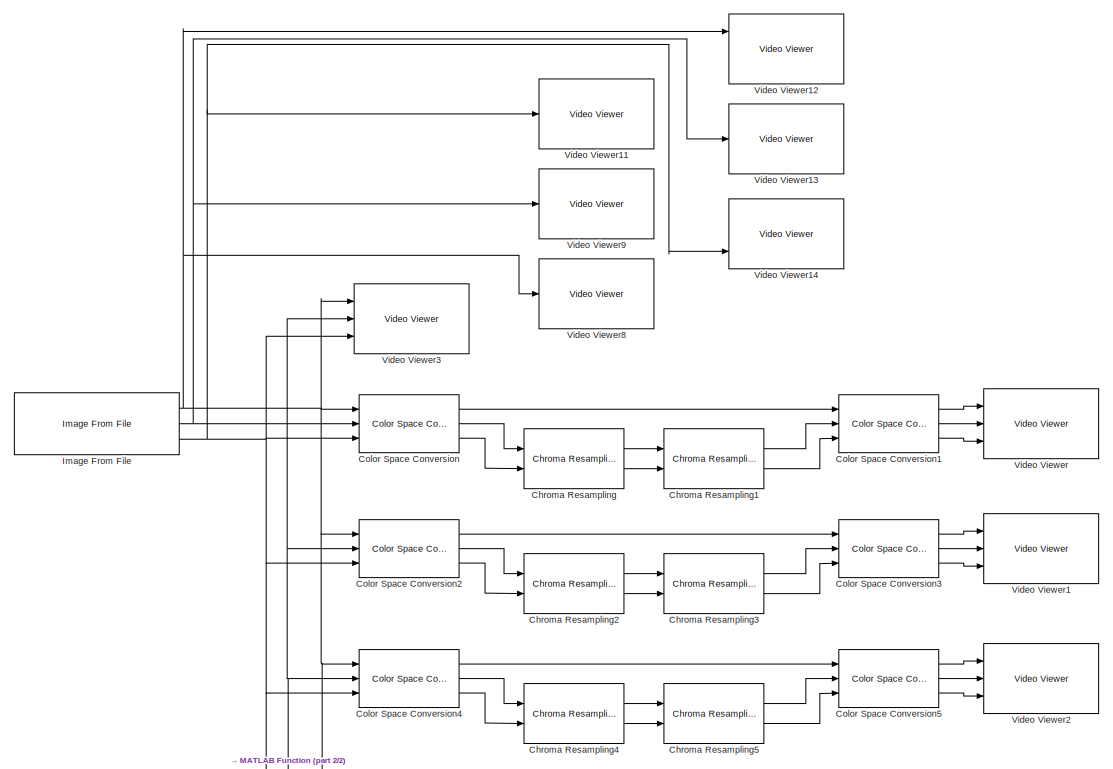
[diagram: root canvas - part 1/2, full width, top band]
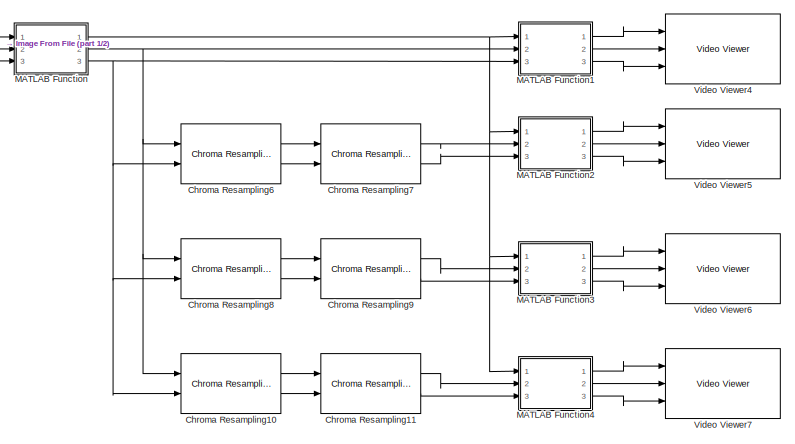
[diagram: root canvas - part 2/2, bottom center region]
MODEL slx_1290acf351bf
KIND model
BLOCK [Reference] Chroma Resampling  REF=visionconversions/Chroma
Resampling
  Ports = [2, 2]
  SourceBlock = visionconversions/Chroma\nResampling
  SourceType = Chroma Resampling
  antialiasing = Default
  hcoeff = [0.2 0.6 0.2]
  interpolation = pixel replication
  isInputTransposed = off
  resampling = 4:4:4 to 4:2:2
  vcoeff = [0.5 0.5]
BLOCK [Reference] Chroma Resampling1  REF=visionconversions/Chroma
Resampling
  Ports = [2, 2]
  SourceBlock = visionconversions/Chroma\nResampling
  SourceType = Chroma Resampling
  antialiasing = Default
  hcoeff = [0.2 0.6 0.2]
  interpolation = linear
  isInputTransposed = off
  resampling = 4:2:2 to 4:4:4
  vcoeff = [0.5 0.5]
BLOCK [Reference] Chroma Resampling10  REF=visionconversions/Chroma
Resampling
  Ports = [2, 2]
  SourceBlock = visionconversions/Chroma\nResampling
  SourceType = Chroma Resampling
  antialiasing = Default
  hcoeff = [0.2 0.6 0.2]
  interpolation = pixel replication
  isInputTransposed = off
  resampling = 4:4:4 to 4:2:0 (MPEG1)
  vcoeff = [0.5 0.5]
BLOCK [Reference] Chroma Resampling11  REF=visionconversions/Chroma
Resampling
  Ports = [2, 2]
  SourceBlock = visionconversions/Chroma\nResampling
  SourceType = Chroma Resampling
  antialiasing = Default
  hcoeff = [0.2 0.6 0.2]
  interpolation = linear
  isInputTransposed = off
  resampling = 4:2:0 (MPEG1) to 4:4:4
  vcoeff = [0.5 0.5]
BLOCK [Reference] Chroma Resampling2  REF=visionconversions/Chroma
Resampling
  Ports = [2, 2]
  SourceBlock = visionconversions/Chroma\nResampling
  SourceType = Chroma Resampling
  antialiasing = Default
  hcoeff = [0.2 0.6 0.2]
  interpolation = pixel replication
  isInputTransposed = off
  resampling = 4:4:4 to 4:1:1
  vcoeff = [0.5 0.5]
BLOCK [Reference] Chroma Resampling3  REF=visionconversions/Chroma
Resampling
  Ports = [2, 2]
  SourceBlock = visionconversions/Chroma\nResampling
  SourceType = Chroma Resampling
  antialiasing = Default
  hcoeff = [0.2 0.6 0.2]
  interpolation = linear
  isInputTransposed = off
  resampling = 4:1:1 to 4:4:4
  vcoeff = [0.5 0.5]
BLOCK [Reference] Chroma Resampling4  REF=visionconversions/Chroma
Resampling
  Ports = [2, 2]
  SourceBlock = visionconversions/Chroma\nResampling
  SourceType = Chroma Resampling
  antialiasing = Default
  hcoeff = [0.2 0.6 0.2]
  interpolation = pixel replication
  isInputTransposed = off
  resampling = 4:4:4 to 4:2:0 (MPEG1)
  vcoeff = [0.5 0.5]
BLOCK [Reference] Chroma Resampling5  REF=visionconversions/Chroma
Resampling
  Ports = [2, 2]
  SourceBlock = visionconversions/Chroma\nResampling
  SourceType = Chroma Resampling
  antialiasing = Default
  hcoeff = [0.2 0.6 0.2]
  interpolation = linear
  isInputTransposed = off
  resampling = 4:2:0 (MPEG1) to 4:4:4
  vcoeff = [0.5 0.5]
BLOCK [Reference] Chroma Resampling6  REF=visionconversions/Chroma
Resampling
  Ports = [2, 2]
  SourceBlock = visionconversions/Chroma\nResampling
  SourceType = Chroma Resampling
  antialiasing = Default
  hcoeff = [0.2 0.6 0.2]
  interpolation = pixel replication
  isInputTransposed = off
  resampling = 4:4:4 to 4:2:2
  vcoeff = [0.5 0.5]
BLOCK [Reference] Chroma Resampling7  REF=visionconversions/Chroma
Resampling
  Ports = [2, 2]
  SourceBlock = visionconversions/Chroma\nResampling
  SourceType = Chroma Resampling
  antialiasing = Default
  hcoeff = [0.2 0.6 0.2]
  interpolation = linear
  isInputTransposed = off
  resampling = 4:2:2 to 4:4:4
  vcoeff = [0.5 0.5]
BLOCK [Reference] Chroma Resampling8  REF=visionconversions/Chroma
Resampling
  Ports = [2, 2]
  SourceBlock = visionconversions/Chroma\nResampling
  SourceType = Chroma Resampling
  antialiasing = Default
  hcoeff = [0.2 0.6 0.2]
  interpolation = pixel replication
  isInputTransposed = off
  resampling = 4:4:4 to 4:1:1
  vcoeff = [0.5 0.5]
BLOCK [Reference] Chroma Resampling9  REF=visionconversions/Chroma
Resampling
  Ports = [2, 2]
  SourceBlock = visionconversions/Chroma\nResampling
  SourceType = Chroma Resampling
  antialiasing = Default
  hcoeff = [0.2 0.6 0.2]
  interpolation = linear
  isInputTransposed = off
  resampling = 4:1:1 to 4:4:4
  vcoeff = [0.5 0.5]
BLOCK [Reference] Color Space Conversion  REF=visionconversions/Color Space
 Conversion
  Ports = [3, 3]
  SourceBlock = visionconversions/Color Space\n Conversion
  SourceType = Color Space Conversion
  conversion = Obsolete
  conversionActive = R'G'B' to Y'CbCr
  imagePorts = Separate color signals
  rec = Rec. 601 (SDTV)
  sys = 1125/60/2:1
  wp_str = D65
BLOCK [Reference] Color Space Conversion1  REF=visionconversions/Color Space
 Conversion
  Ports = [3, 3]
  SourceBlock = visionconversions/Color Space\n Conversion
  SourceType = Color Space Conversion
  conversion = Obsolete
  conversionActive = Y'CbCr to R'G'B'
  imagePorts = Separate color signals
  rec = Rec. 601 (SDTV)
  sys = 1125/60/2:1
  wp_str = D65
BLOCK [Reference] Color Space Conversion2  REF=visionconversions/Color Space
 Conversion
  Ports = [3, 3]
  SourceBlock = visionconversions/Color Space\n Conversion
  SourceType = Color Space Conversion
  conversion = Obsolete
  conversionActive = R'G'B' to Y'CbCr
  imagePorts = Separate color signals
  rec = Rec. 601 (SDTV)
  sys = 1125/60/2:1
  wp_str = D65
BLOCK [Reference] Color Space Conversion3  REF=visionconversions/Color Space
 Conversion
  Ports = [3, 3]
  SourceBlock = visionconversions/Color Space\n Conversion
  SourceType = Color Space Conversion
  conversion = Obsolete
  conversionActive = Y'CbCr to R'G'B'
  imagePorts = Separate color signals
  rec = Rec. 601 (SDTV)
  sys = 1125/60/2:1
  wp_str = D65
BLOCK [Reference] Color Space Conversion4  REF=visionconversions/Color Space
 Conversion
  Ports = [3, 3]
  SourceBlock = visionconversions/Color Space\n Conversion
  SourceType = Color Space Conversion
  conversion = Obsolete
  conversionActive = R'G'B' to Y'CbCr
  imagePorts = Separate color signals
  rec = Rec. 601 (SDTV)
  sys = 1125/60/2:1
  wp_str = D65
BLOCK [Reference] Color Space Conversion5  REF=visionconversions/Color Space
 Conversion
  Ports = [3, 3]
  SourceBlock = visionconversions/Color Space\n Conversion
  SourceType = Color Space Conversion
  conversion = Obsolete
  conversionActive = Y'CbCr to R'G'B'
  imagePorts = Separate color signals
  rec = Rec. 601 (SDTV)
  sys = 1125/60/2:1
  wp_str = D65
BLOCK [Reference] Image From File  REF=visionsources/Image From File
  FileName = <userpath>\Desktop\parrots.jpg
  FractionLength = 15
  FractionLengthMode = User-defined
  ImageDataType = double
  OutPortLabels = R|G|B
  Ports = [0, 3]
  Signed = on
  SourceBlock = visionsources/Image From File
  SourceType = Image From File
  Tag = vipblks_nd
  Ts = inf
  WordLength = 16
  imagePorts = Separate color signals
  sdImageDataType = uint(8)
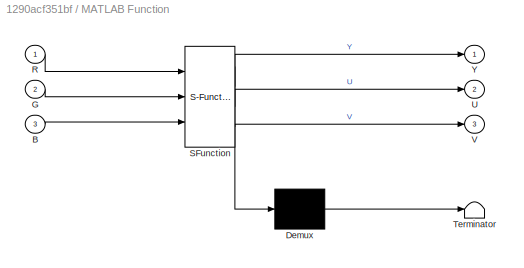
BLOCK [SubSystem] MATLAB Function
  ErrorFcn = Stateflow.Translate.translate
  PermitHierarchicalResolution = ExplicitOnly
  Ports = [3, 3]
  RequestExecContextInheritance = off
  SFBlockType = MATLAB Function
  TreatAsAtomicUnit = on
BLOCK [Demux] MATLAB Function/ Demux 
  Outputs = 1
  Ports = [1, 1]
BLOCK [S-Function] MATLAB Function/ SFunction 
  EnableBusSupport = on
  FunctionName = sf_sfun
  PortCounts = [3 4]
  Ports = [3, 4]
  Tag = Stateflow S-Function odev2 2
BLOCK [Terminator] MATLAB Function/ Terminator 
BLOCK [Inport] MATLAB Function/B
  IconDisplay = Port number
  Port = 3
BLOCK [Inport] MATLAB Function/G
  IconDisplay = Port number
  Port = 2
BLOCK [Inport] MATLAB Function/R
  IconDisplay = Port number
BLOCK [Outport] MATLAB Function/U
  IconDisplay = Port number
  Port = 2
BLOCK [Outport] MATLAB Function/V
  IconDisplay = Port number
  Port = 3
BLOCK [Outport] MATLAB Function/Y
  IconDisplay = Port number
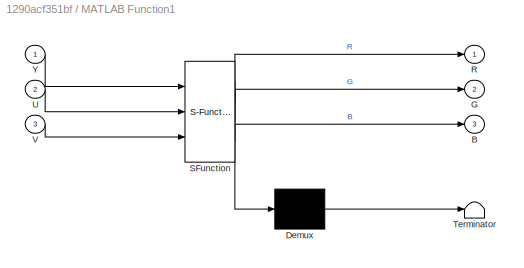
BLOCK [SubSystem] MATLAB Function1
  ErrorFcn = Stateflow.Translate.translate
  PermitHierarchicalResolution = ExplicitOnly
  Ports = [3, 3]
  RequestExecContextInheritance = off
  SFBlockType = MATLAB Function
  TreatAsAtomicUnit = on
BLOCK [Demux] MATLAB Function1/ Demux 
  Outputs = 1
  Ports = [1, 1]
BLOCK [S-Function] MATLAB Function1/ SFunction 
  EnableBusSupport = on
  FunctionName = sf_sfun
  PortCounts = [3 4]
  Ports = [3, 4]
  Tag = Stateflow S-Function odev2 1
BLOCK [Terminator] MATLAB Function1/ Terminator 
BLOCK [Outport] MATLAB Function1/B
  IconDisplay = Port number
  Port = 3
BLOCK [Outport] MATLAB Function1/G
  IconDisplay = Port number
  Port = 2
BLOCK [Outport] MATLAB Function1/R
  IconDisplay = Port number
BLOCK [Inport] MATLAB Function1/U
  IconDisplay = Port number
  Port = 2
BLOCK [Inport] MATLAB Function1/V
  IconDisplay = Port number
  Port = 3
BLOCK [Inport] MATLAB Function1/Y
  IconDisplay = Port number
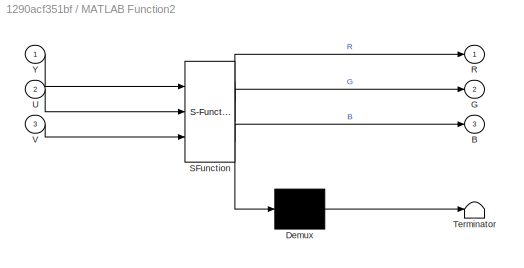
BLOCK [SubSystem] MATLAB Function2
  ErrorFcn = Stateflow.Translate.translate
  PermitHierarchicalResolution = ExplicitOnly
  Ports = [3, 3]
  RequestExecContextInheritance = off
  SFBlockType = MATLAB Function
  TreatAsAtomicUnit = on
BLOCK [Demux] MATLAB Function2/ Demux 
  Outputs = 1
  Ports = [1, 1]
BLOCK [S-Function] MATLAB Function2/ SFunction 
  EnableBusSupport = on
  FunctionName = sf_sfun
  PortCounts = [3 4]
  Ports = [3, 4]
  Tag = Stateflow S-Function odev2 3
BLOCK [Terminator] MATLAB Function2/ Terminator 
BLOCK [Outport] MATLAB Function2/B
  IconDisplay = Port number
  Port = 3
BLOCK [Outport] MATLAB Function2/G
  IconDisplay = Port number
  Port = 2
BLOCK [Outport] MATLAB Function2/R
  IconDisplay = Port number
BLOCK [Inport] MATLAB Function2/U
  IconDisplay = Port number
  Port = 2
BLOCK [Inport] MATLAB Function2/V
  IconDisplay = Port number
  Port = 3
BLOCK [Inport] MATLAB Function2/Y
  IconDisplay = Port number
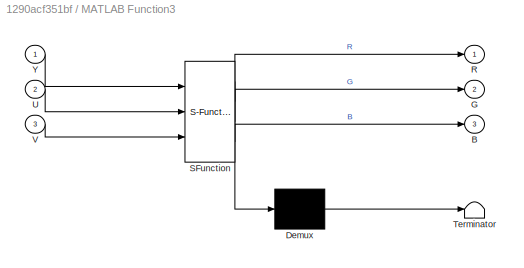
BLOCK [SubSystem] MATLAB Function3
  ErrorFcn = Stateflow.Translate.translate
  PermitHierarchicalResolution = ExplicitOnly
  Ports = [3, 3]
  RequestExecContextInheritance = off
  SFBlockType = MATLAB Function
  TreatAsAtomicUnit = on
BLOCK [Demux] MATLAB Function3/ Demux 
  Outputs = 1
  Ports = [1, 1]
BLOCK [S-Function] MATLAB Function3/ SFunction 
  EnableBusSupport = on
  FunctionName = sf_sfun
  PortCounts = [3 4]
  Ports = [3, 4]
  Tag = Stateflow S-Function odev2 4
BLOCK [Terminator] MATLAB Function3/ Terminator 
BLOCK [Outport] MATLAB Function3/B
  IconDisplay = Port number
  Port = 3
BLOCK [Outport] MATLAB Function3/G
  IconDisplay = Port number
  Port = 2
BLOCK [Outport] MATLAB Function3/R
  IconDisplay = Port number
BLOCK [Inport] MATLAB Function3/U
  IconDisplay = Port number
  Port = 2
BLOCK [Inport] MATLAB Function3/V
  IconDisplay = Port number
  Port = 3
BLOCK [Inport] MATLAB Function3/Y
  IconDisplay = Port number
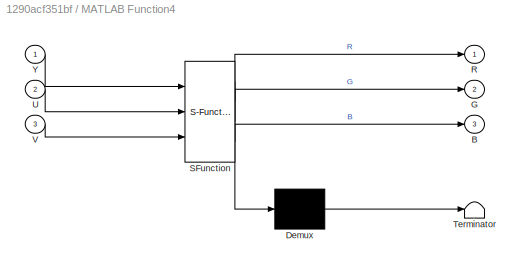
BLOCK [SubSystem] MATLAB Function4
  ErrorFcn = Stateflow.Translate.translate
  PermitHierarchicalResolution = ExplicitOnly
  Ports = [3, 3]
  RequestExecContextInheritance = off
  SFBlockType = MATLAB Function
  TreatAsAtomicUnit = on
BLOCK [Demux] MATLAB Function4/ Demux 
  Outputs = 1
  Ports = [1, 1]
BLOCK [S-Function] MATLAB Function4/ SFunction 
  EnableBusSupport = on
  FunctionName = sf_sfun
  PortCounts = [3 4]
  Ports = [3, 4]
  Tag = Stateflow S-Function odev2 5
BLOCK [Terminator] MATLAB Function4/ Terminator 
BLOCK [Outport] MATLAB Function4/B
  IconDisplay = Port number
  Port = 3
BLOCK [Outport] MATLAB Function4/G
  IconDisplay = Port number
  Port = 2
BLOCK [Outport] MATLAB Function4/R
  IconDisplay = Port number
BLOCK [Inport] MATLAB Function4/U
  IconDisplay = Port number
  Port = 2
BLOCK [Inport] MATLAB Function4/V
  IconDisplay = Port number
  Port = 3
BLOCK [Inport] MATLAB Function4/Y
  IconDisplay = Port number
BLOCK [Reference] Video Viewer  REF=visionsinks/Video Viewer
  AxisZoom = on
  DefaultConfigurationName = vipscopes.VideoViewerScopeCfg
  FigPos = [193 561 410 300]
  OpenAtMdlStart = on
  Ports = [3]
  SourceBlock = visionsinks/Video Viewer
  SourceType = Video Viewer
  UserDataPersistent = on
  colormapValue = gray(256)
  imagePorts = Separate color signals
  inputType = Obsolete7b
  maxInputVal = 255
  minInputVal = 0
  specRange = off
  trueSizedOnce = off
  useColorMap = off
BLOCK [Reference] Video Viewer1  REF=visionsinks/Video Viewer
  AxisZoom = on
  DefaultConfigurationName = vipscopes.VideoViewerScopeCfg
  FigPos = [390 779 410 300]
  OpenAtMdlStart = on
  Ports = [3]
  SourceBlock = visionsinks/Video Viewer
  SourceType = Video Viewer
  UserDataPersistent = on
  colormapValue = gray(256)
  imagePorts = Separate color signals
  inputType = Obsolete7b
  maxInputVal = 255
  minInputVal = 0
  specRange = off
  trueSizedOnce = off
  useColorMap = off
BLOCK [Reference] Video Viewer11  REF=visionsinks/Video Viewer
  AxisZoom = on
  DefaultConfigurationName = vipscopes.VideoViewerScopeCfg
  FigPos = [787 651 410 300]
  OpenAtMdlStart = on
  Ports = [1]
  SourceBlock = visionsinks/Video Viewer
  SourceType = Video Viewer
  UserDataPersistent = on
  colormapValue = gray(256)
  imagePorts = One multidimensional signal
  inputType = Obsolete7b
  maxInputVal = 255
  minInputVal = 0
  specRange = off
  trueSizedOnce = off
  useColorMap = off
BLOCK [Reference] Video Viewer12  REF=visionsinks/Video Viewer
  AxisZoom = on
  DefaultConfigurationName = vipscopes.VideoViewerScopeCfg
  FigPos = [193 561 410 300]
  OpenAtMdlStart = on
  Ports = [3]
  SourceBlock = visionsinks/Video Viewer
  SourceType = Video Viewer
  UserDataPersistent = on
  colormapValue = gray(256)
  imagePorts = Separate color signals
  inputType = Obsolete7b
  maxInputVal = 255
  minInputVal = 0
  specRange = off
  trueSizedOnce = off
  useColorMap = off
BLOCK [Reference] Video Viewer13  REF=visionsinks/Video Viewer
  AxisZoom = on
  DefaultConfigurationName = vipscopes.VideoViewerScopeCfg
  FigPos = [193 561 410 300]
  OpenAtMdlStart = on
  Ports = [3]
  SourceBlock = visionsinks/Video Viewer
  SourceType = Video Viewer
  UserDataPersistent = on
  colormapValue = gray(256)
  imagePorts = Separate color signals
  inputType = Obsolete7b
  maxInputVal = 255
  minInputVal = 0
  specRange = off
  trueSizedOnce = off
  useColorMap = off
BLOCK [Reference] Video Viewer14  REF=visionsinks/Video Viewer
  AxisZoom = on
  DefaultConfigurationName = vipscopes.VideoViewerScopeCfg
  FigPos = [193 561 410 300]
  OpenAtMdlStart = on
  Ports = [3]
  SourceBlock = visionsinks/Video Viewer
  SourceType = Video Viewer
  UserDataPersistent = on
  colormapValue = gray(256)
  imagePorts = Separate color signals
  inputType = Obsolete7b
  maxInputVal = 255
  minInputVal = 0
  specRange = off
  trueSizedOnce = off
  useColorMap = off
BLOCK [Reference] Video Viewer2  REF=visionsinks/Video Viewer
  AxisZoom = on
  DefaultConfigurationName = vipscopes.VideoViewerScopeCfg
  FigPos = [663 467 410 300]
  OpenAtMdlStart = on
  Ports = [3]
  SourceBlock = visionsinks/Video Viewer
  SourceType = Video Viewer
  UserDataPersistent = on
  colormapValue = gray(256)
  imagePorts = Separate color signals
  inputType = Obsolete7b
  maxInputVal = 255
  minInputVal = 0
  specRange = off
  trueSizedOnce = off
  useColorMap = off
BLOCK [Reference] Video Viewer3  REF=visionsinks/Video Viewer
  AxisZoom = on
  DefaultConfigurationName = vipscopes.VideoViewerScopeCfg
  FigPos = [787 651 410 300]
  OpenAtMdlStart = on
  Ports = [3]
  SourceBlock = visionsinks/Video Viewer
  SourceType = Video Viewer
  UserDataPersistent = on
  colormapValue = gray(256)
  imagePorts = Separate color signals
  inputType = Obsolete7b
  maxInputVal = 255
  minInputVal = 0
  specRange = off
  trueSizedOnce = off
  useColorMap = off
BLOCK [Reference] Video Viewer4  REF=visionsinks/Video Viewer
  AxisZoom = on
  DefaultConfigurationName = vipscopes.VideoViewerScopeCfg
  FigPos = [663 467 410 300]
  OpenAtMdlStart = on
  Ports = [3]
  SourceBlock = visionsinks/Video Viewer
  SourceType = Video Viewer
  UserDataPersistent = on
  colormapValue = gray(256)
  imagePorts = Separate color signals
  inputType = Obsolete7b
  maxInputVal = 255
  minInputVal = 0
  specRange = off
  trueSizedOnce = off
  useColorMap = off
BLOCK [Reference] Video Viewer5  REF=visionsinks/Video Viewer
  AxisZoom = on
  DefaultConfigurationName = vipscopes.VideoViewerScopeCfg
  FigPos = [663 467 410 300]
  OpenAtMdlStart = on
  Ports = [3]
  SourceBlock = visionsinks/Video Viewer
  SourceType = Video Viewer
  UserDataPersistent = on
  colormapValue = gray(256)
  imagePorts = Separate color signals
  inputType = Obsolete7b
  maxInputVal = 255
  minInputVal = 0
  specRange = off
  trueSizedOnce = off
  useColorMap = off
BLOCK [Reference] Video Viewer6  REF=visionsinks/Video Viewer
  AxisZoom = on
  DefaultConfigurationName = vipscopes.VideoViewerScopeCfg
  FigPos = [663 467 410 300]
  OpenAtMdlStart = on
  Ports = [3]
  SourceBlock = visionsinks/Video Viewer
  SourceType = Video Viewer
  UserDataPersistent = on
  colormapValue = gray(256)
  imagePorts = Separate color signals
  inputType = Obsolete7b
  maxInputVal = 255
  minInputVal = 0
  specRange = off
  trueSizedOnce = off
  useColorMap = off
BLOCK [Reference] Video Viewer7  REF=visionsinks/Video Viewer
  AxisZoom = on
  DefaultConfigurationName = vipscopes.VideoViewerScopeCfg
  FigPos = [663 467 410 300]
  OpenAtMdlStart = on
  Ports = [3]
  SourceBlock = visionsinks/Video Viewer
  SourceType = Video Viewer
  UserDataPersistent = on
  colormapValue = gray(256)
  imagePorts = Separate color signals
  inputType = Obsolete7b
  maxInputVal = 255
  minInputVal = 0
  specRange = off
  trueSizedOnce = off
  useColorMap = off
BLOCK [Reference] Video Viewer8  REF=visionsinks/Video Viewer
  AxisZoom = on
  DefaultConfigurationName = vipscopes.VideoViewerScopeCfg
  FigPos = [308 631 410 300]
  OpenAtMdlStart = on
  Ports = [1]
  SourceBlock = visionsinks/Video Viewer
  SourceType = Video Viewer
  UserDataPersistent = on
  colormapValue = gray(256)
  imagePorts = One multidimensional signal
  inputType = Obsolete7b
  maxInputVal = 255
  minInputVal = 0
  specRange = off
  trueSizedOnce = off
  useColorMap = off
BLOCK [Reference] Video Viewer9  REF=visionsinks/Video Viewer
  AxisZoom = on
  DefaultConfigurationName = vipscopes.VideoViewerScopeCfg
  FigPos = [787 651 410 300]
  OpenAtMdlStart = on
  Ports = [1]
  SourceBlock = visionsinks/Video Viewer
  SourceType = Video Viewer
  UserDataPersistent = on
  colormapValue = gray(256)
  imagePorts = One multidimensional signal
  inputType = Obsolete7b
  maxInputVal = 255
  minInputVal = 0
  specRange = off
  trueSizedOnce = off
  useColorMap = off
LINE Chroma Resampling10:1 -> Chroma Resampling11:1
LINE Chroma Resampling10:2 -> Chroma Resampling11:2
LINE Chroma Resampling11:1 -> MATLAB Function4:2
LINE Chroma Resampling11:2 -> MATLAB Function4:3
LINE Chroma Resampling1:1 -> Color Space Conversion1:2
LINE Chroma Resampling1:2 -> Color Space Conversion1:3
LINE Chroma Resampling2:1 -> Chroma Resampling3:1
LINE Chroma Resampling2:2 -> Chroma Resampling3:2
LINE Chroma Resampling3:1 -> Color Space Conversion3:2
LINE Chroma Resampling3:2 -> Color Space Conversion3:3
LINE Chroma Resampling4:1 -> Chroma Resampling5:1
LINE Chroma Resampling4:2 -> Chroma Resampling5:2
LINE Chroma Resampling5:1 -> Color Space Conversion5:2
LINE Chroma Resampling5:2 -> Color Space Conversion5:3
LINE Chroma Resampling6:1 -> Chroma Resampling7:1
LINE Chroma Resampling6:2 -> Chroma Resampling7:2
LINE Chroma Resampling7:1 -> MATLAB Function2:2
LINE Chroma Resampling7:2 -> MATLAB Function2:3
LINE Chroma Resampling8:1 -> Chroma Resampling9:1
LINE Chroma Resampling8:2 -> Chroma Resampling9:2
LINE Chroma Resampling9:1 -> MATLAB Function3:2
LINE Chroma Resampling9:2 -> MATLAB Function3:3
LINE Chroma Resampling:1 -> Chroma Resampling1:1
LINE Chroma Resampling:2 -> Chroma Resampling1:2
LINE Color Space Conversion1:1 -> Video Viewer:1
LINE Color Space Conversion1:2 -> Video Viewer:2
LINE Color Space Conversion1:3 -> Video Viewer:3
LINE Color Space Conversion2:1 -> Color Space Conversion3:1
LINE Color Space Conversion2:2 -> Chroma Resampling2:1
LINE Color Space Conversion2:3 -> Chroma Resampling2:2
LINE Color Space Conversion3:1 -> Video Viewer1:1
LINE Color Space Conversion3:2 -> Video Viewer1:2
LINE Color Space Conversion3:3 -> Video Viewer1:3
LINE Color Space Conversion4:1 -> Color Space Conversion5:1
LINE Color Space Conversion4:2 -> Chroma Resampling4:1
LINE Color Space Conversion4:3 -> Chroma Resampling4:2
LINE Color Space Conversion5:1 -> Video Viewer2:1
LINE Color Space Conversion5:2 -> Video Viewer2:2
LINE Color Space Conversion5:3 -> Video Viewer2:3
LINE Color Space Conversion:1 -> Color Space Conversion1:1
LINE Color Space Conversion:2 -> Chroma Resampling:1
LINE Color Space Conversion:3 -> Chroma Resampling:2
NET Image From File:1 -> Color Space Conversion2:1, Color Space Conversion4:1, Color Space Conversion:1, MATLAB Function:1, Video Viewer12:1, Video Viewer3:1, Video Viewer8:1
NET Image From File:2 -> Color Space Conversion2:2, Color Space Conversion4:2, Color Space Conversion:2, MATLAB Function:2, Video Viewer13:2, Video Viewer3:2, Video Viewer9:1
NET Image From File:3 -> Color Space Conversion2:3, Color Space Conversion4:3, Color Space Conversion:3, MATLAB Function:3, Video Viewer11:1, Video Viewer14:3, Video Viewer3:3
LINE MATLAB Function1:1 -> Video Viewer4:1
LINE MATLAB Function1:2 -> Video Viewer4:2
LINE MATLAB Function1:3 -> Video Viewer4:3
LINE MATLAB Function2:1 -> Video Viewer5:1
LINE MATLAB Function2:2 -> Video Viewer5:2
LINE MATLAB Function2:3 -> Video Viewer5:3
LINE MATLAB Function3:1 -> Video Viewer6:1
LINE MATLAB Function3:2 -> Video Viewer6:2
LINE MATLAB Function3:3 -> Video Viewer6:3
LINE MATLAB Function4:1 -> Video Viewer7:1
LINE MATLAB Function4:2 -> Video Viewer7:2
LINE MATLAB Function4:3 -> Video Viewer7:3
NET MATLAB Function:1 -> MATLAB Function1:1, MATLAB Function2:1, MATLAB Function3:1, MATLAB Function4:1
NET MATLAB Function:2 -> Chroma Resampling10:1, Chroma Resampling6:1, Chroma Resampling8:1, MATLAB Function1:2
NET MATLAB Function:3 -> Chroma Resampling10:2, Chroma Resampling6:2, Chroma Resampling8:2, MATLAB Function1:3
note: NET lines group one-source signal fan-out (src -> all destinations, sorted); 1:1 wires keep LINE
